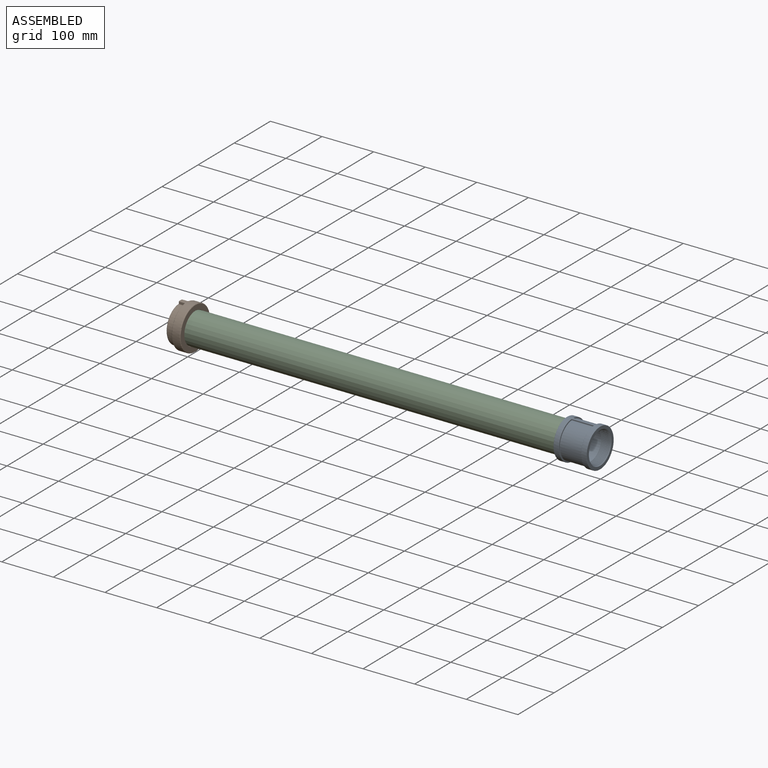
[diagram: assembled view]
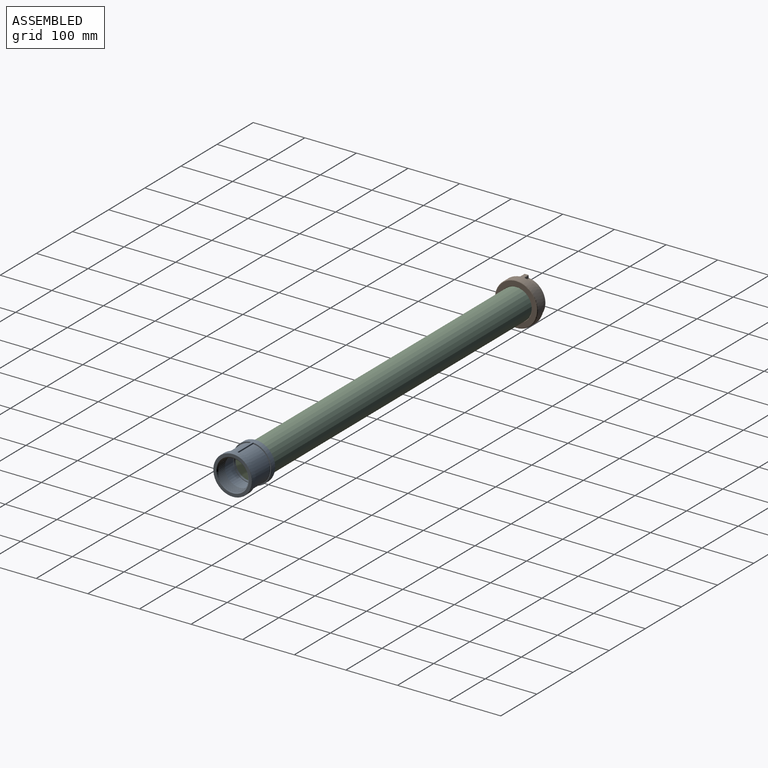
[diagram: assembled view, second angle]
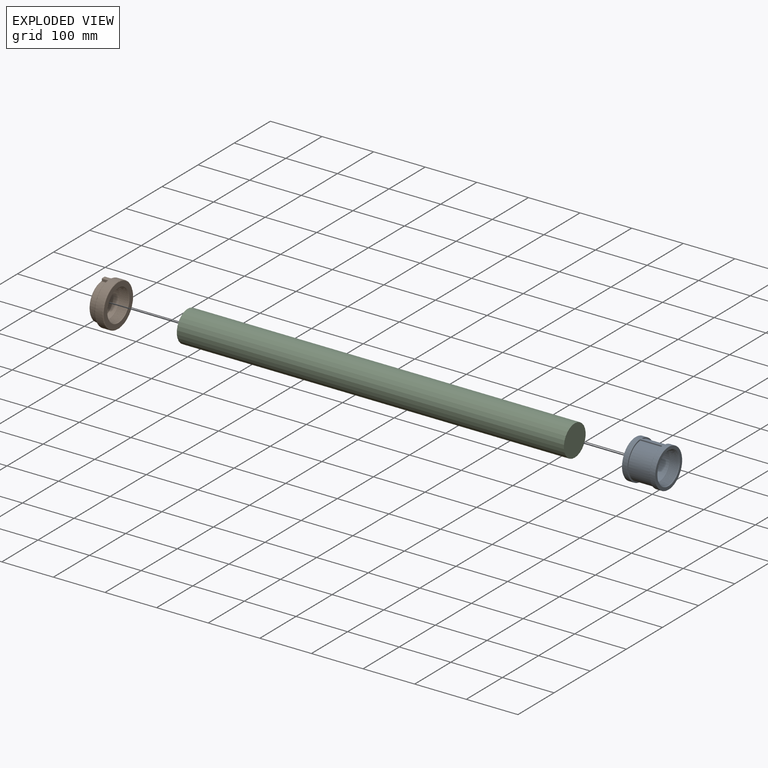
[diagram: exploded view]
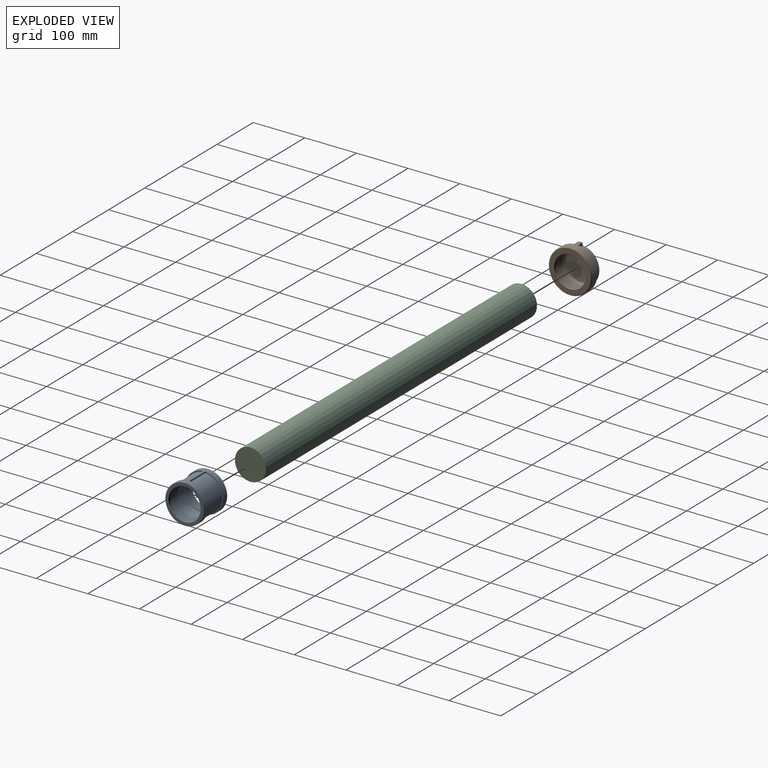
[diagram: exploded view, second angle]
ASSEMBLY  parts=3 mates=4
PART A: 106 faces, bbox 81.4x81.4x64.3 mm
  f0: cone r=0mm half-angle=1.8deg, axis (0,0,-1), area 18.4mm2, adj f1,f103,f104,f105
  f1: plane 61.11x61.11mm, normal (0,0,1), area 301.9mm2, adj f0,f2,f102,f103,f105
  f2: cylinder r=30.54mm len=61.09mm, axis (0,0,1), area 4957.4mm2, adj f1,f3
  f3: plane 61.11x61.11mm, normal (0,0,-1), area 283.1mm2, adj f2,f4,f99,f100,f101
  f4: cone r=0mm half-angle=1.8deg, axis (0,0,1), area 18.4mm2, adj f3,f5,f99,f101
  f5: cone r=0mm half-angle=1.8deg, axis (0,0,1), area 27.8mm2, adj f4,f6,f99,f101
  f6: cone r=0mm half-angle=1.8deg, axis (0,0,1), area 29.8mm2, adj f5,f7,f99,f101
  f7: cone r=0mm half-angle=1.8deg, axis (0,0,1), area 30.5mm2, adj f6,f8,f99,f101
  f8: cone r=0mm half-angle=1.8deg, axis (0,0,1), area 28.8mm2, adj f7,f9,f99,f101
  f9: cone r=0mm half-angle=1.8deg, axis (0,0,1), area 29.4mm2, adj f8,f10,f99,f101
  f10: cone r=0mm half-angle=1.8deg, axis (0,0,1), area 27.7mm2, adj f9,f11,f99,f101
  f11: cone r=0mm half-angle=1.8deg, axis (0,0,1), area 27.7mm2, adj f10,f12,f99,f101
  f12: cone r=0mm half-angle=1.8deg, axis (0,0,1), area 30mm2, adj f11,f13,f99,f101
  f13: cone r=0mm half-angle=1.8deg, axis (0,0,1), area 28.8mm2, adj f12,f14,f99,f101
  f14: cone r=0mm half-angle=1.8deg, axis (0,0,1), area 27.4mm2, adj f13,f15,f99,f101
  f15: cone r=0mm half-angle=1.8deg, axis (0,0,1), area 28.7mm2, adj f14,f16,f99,f101
  f16: cone r=0mm half-angle=1.8deg, axis (0,0,1), area 29.3mm2, adj f15,f17,f99,f101
  f17: cone r=0mm half-angle=1.8deg, axis (0,0,1), area 29.9mm2, adj f16,f18,f99,f101
  f18: cone r=0mm half-angle=1.8deg, axis (0,0,1), area 17.6mm2, adj f17,f19,f99,f101
  f19: cone r=0mm half-angle=1.8deg, axis (0,0,1), area 27.3mm2, adj f18,f20,f99,f101
  f20: cone r=0mm half-angle=1.8deg, axis (0,0,1), area 21.1mm2, adj f19,f21,f99,f101
  f21: cone r=0mm half-angle=45deg, axis (0,0,1), area 226.8mm2, adj f20,f22,f98,f99,f100,f101
  f22: plane 74.39x74.39mm, normal (0,0,1), area 1276.8mm2, adj f21,f23,f97,f98
  f23: torus R=37.2mm, axis (0,0,1), area 73.3mm2, adj f22,f24,f97
  f24: cylinder r=37.59mm len=75.18mm, axis (0,0,1), area 4978.7mm2, adj f23,f25,f43,f44,f45,f46,f47,f48
  f25: bspline ~0.8x0.79mm, area 0.5mm2, adj f24,f26,f43,f49
  f26: cylinder r=0.4mm len=1.99mm, axis (-1,0,0), area 1.2mm2, adj f25,f27,f41,f42
  f27: sphere r=0.4mm, area 0.2mm2, adj f26,f28,f40
  f28: cylinder r=0.4mm len=42.13mm, axis (0,0,-1), area 25.1mm2, adj f27,f29,f39,f42
  f29: sphere r=0.4mm, area 0.2mm2, adj f28,f30,f38
  f30: cylinder r=0.4mm len=1.99mm, axis (-1,0,0), area 1.2mm2, adj f29,f31,f42,f44
  f31: plane 74.21x34.64mm, normal (0,0,-1), area 210.6mm2, adj f30,f32,f38,f45
  f32: cylinder r=0.4mm len=1.99mm, axis (-1,0,0), area 1.2mm2, adj f31,f33,f37,f46
  f33: sphere r=0.4mm, area 0.2mm2, adj f32,f34,f38
  f34: cylinder r=0.4mm len=42.13mm, axis (0,0,-1), area 25.1mm2, adj f33,f35,f37,f39
  f35: sphere r=0.4mm, area 0.2mm2, adj f34,f36,f40
  f36: cylinder r=0.4mm len=1.99mm, axis (-1,0,0), area 1.2mm2, adj f35,f37,f41,f48
  f37: plane 42.13x1.99mm, normal (0,-1,0), area 83.7mm2, adj f32,f34,f36,f47
  f38: torus R=35.26mm, axis (0,0,1), area 65.4mm2, adj f29,f31,f33,f39
  f39: cylinder r=34.86mm len=69.54mm, axis (0,0,-1), area 4401.2mm2, adj f28,f34,f38,f40
  f40: torus R=35.26mm, axis (0,0,-1), area 65.4mm2, adj f27,f35,f39,f41
  f41: plane 74.21x34.64mm, normal (0,0,1), area 210.6mm2, adj f26,f36,f40,f49
  f42: plane 42.13x1.99mm, normal (0,-1,0), area 83.7mm2, adj f26,f28,f30,f43
  f43: cylinder r=0.4mm len=42.13mm, axis (0,0,1), area 25.5mm2, adj f24,f25,f42,f44
  f44: bspline ~0.8x0.79mm, area 0.5mm2, adj f24,f30,f43,f45
  f45: torus R=37.2mm, axis (0,0,1), area 70.1mm2, adj f24,f31,f44,f46
  f46: bspline ~0.8x0.79mm, area 0.5mm2, adj f24,f32,f45,f47
  f47: cylinder r=0.4mm len=42.13mm, axis (0,0,1), area 25.5mm2, adj f24,f37,f46,f48
  f48: bspline ~0.8x0.79mm, area 0.5mm2, adj f24,f36,f47,f49
  f49: torus R=37.2mm, axis (0,0,-1), area 70.1mm2, adj f24,f25,f41,f48
  f50: bspline ~0.8x0.79mm, area 0.5mm2, adj f24,f51,f69,f76
  f51: cylinder r=0.4mm len=1.99mm, axis (1,0,0), area 1.2mm2, adj f50,f52,f67,f68
  f52: plane 74.21x34.64mm, normal (0,0,-1), area 210.6mm2, adj f51,f53,f66,f69
  f53: cylinder r=0.4mm len=1.99mm, axis (1,0,0), area 1.2mm2, adj f52,f54,f65,f70
  f54: sphere r=0.4mm, area 0.2mm2, adj f53,f55,f66
  f55: cylinder r=0.4mm len=42.13mm, axis (0,0,-1), area 25.1mm2, adj f54,f56,f64,f65
  f56: sphere r=0.4mm, area 0.2mm2, adj f55,f57,f63
  f57: cylinder r=0.4mm len=1.99mm, axis (1,0,0), area 1.2mm2, adj f56,f58,f65,f72
  f58: plane 74.21x34.64mm, normal (0,0,1), area 210.4mm2, adj f57,f59,f62,f63,f73,f74
  f59: cylinder r=0.4mm len=1.99mm, axis (1,0,0), area 1.2mm2, adj f58,f60,f68,f75
  f60: sphere r=0.4mm, area 0.2mm2, adj f59,f61,f62
  f61: cylinder r=0.4mm len=42.13mm, axis (0,0,-1), area 25.1mm2, adj f60,f64,f67,f68
  f62: torus R=35.26mm, axis (0,0,-1), area 32.7mm2, adj f58,f60,f63,f64
  f63: torus R=35.26mm, axis (0,0,-1), area 32.7mm2, adj f56,f58,f62,f64
  f64: cylinder r=34.86mm len=69.54mm, axis (0,0,-1), area 4401.2mm2, adj f55,f61,f62,f63,f66
  f65: plane 42.13x1.99mm, normal (0,1,0), area 83.7mm2, adj f53,f55,f57,f71
  f66: torus R=35.26mm, axis (0,0,1), area 65.4mm2, adj f52,f54,f64,f67
  f67: sphere r=0.4mm, area 0.2mm2, adj f51,f61,f66
  f68: plane 42.13x1.99mm, normal (0,1,0), area 83.7mm2, adj f51,f59,f61,f76
  f69: torus R=37.2mm, axis (0,0,1), area 70.1mm2, adj f24,f50,f52,f70
  f70: bspline ~0.8x0.79mm, area 0.5mm2, adj f24,f53,f69,f71
  f71: cylinder r=0.4mm len=42.13mm, axis (0,0,1), area 25.5mm2, adj f24,f65,f70,f72
  f72: bspline ~0.8x0.79mm, area 0.5mm2, adj f24,f57,f71,f73
  f73: torus R=37.2mm, axis (0,0,-1), area 35.1mm2, adj f24,f58,f72,f74
  f74: torus R=37.2mm, axis (0,0,-1), area 35.1mm2, adj f24,f58,f73,f75
  f75: bspline ~0.8x0.79mm, area 0.5mm2, adj f24,f59,f74,f76
  f76: cylinder r=0.4mm len=42.13mm, axis (0,0,1), area 25.5mm2, adj f24,f50,f68,f75
  f77: torus R=37.2mm, axis (0,0,1), area 73.3mm2, adj f24,f78,f96
  f78: plane 74.39x74.39mm, normal (0,0,-1), area 1276.8mm2, adj f77,f79,f80,f96
  f79: cone r=0mm half-angle=45deg, axis (0,0,-1), area 258.7mm2, adj f78,f80,f103
  f80: cone r=0mm half-angle=45deg, axis (0,0,-1), area 226.8mm2, adj f78,f79,f81,f102,f103,f105
  f81: cone r=0mm half-angle=1.8deg, axis (0,0,-1), area 21.2mm2, adj f80,f82,f103,f105
  f82: cone r=0mm half-angle=1.8deg, axis (0,0,-1), area 27.3mm2, adj f81,f83,f103,f105
  f83: cone r=0mm half-angle=1.8deg, axis (0,0,-1), area 17.6mm2, adj f82,f84,f103,f105
  f84: cone r=0mm half-angle=1.8deg, axis (0,0,-1), area 29.9mm2, adj f83,f85,f103,f105
  f85: cone r=0mm half-angle=1.8deg, axis (0,0,-1), area 29.3mm2, adj f84,f86,f103,f105
  f86: cone r=0mm half-angle=1.8deg, axis (0,0,-1), area 28.7mm2, adj f85,f87,f103,f105
  f87: cone r=0mm half-angle=1.8deg, axis (0,0,-1), area 27.4mm2, adj f86,f88,f103,f105
  f88: cone r=0mm half-angle=1.8deg, axis (0,0,-1), area 28.8mm2, adj f87,f89,f103,f105
  f89: cone r=0mm half-angle=1.8deg, axis (0,0,-1), area 30mm2, adj f88,f90,f103,f105
  f90: cone r=0mm half-angle=1.8deg, axis (0,0,-1), area 27.7mm2, adj f89,f91,f103,f105
  f91: cone r=0mm half-angle=1.8deg, axis (0,0,-1), area 27.7mm2, adj f90,f92,f103,f105
  f92: cone r=0mm half-angle=1.8deg, axis (0,0,-1), area 29.4mm2, adj f91,f93,f103,f105
  f93: cone r=0mm half-angle=1.8deg, axis (0,0,-1), area 28.8mm2, adj f92,f94,f103,f105
  f94: cone r=0mm half-angle=1.8deg, axis (0,0,-1), area 30.5mm2, adj f93,f95,f103,f105
  f95: cone r=0mm half-angle=1.8deg, axis (0,0,-1), area 29.8mm2, adj f94,f103,f104,f105
  f96: torus R=37.2mm, axis (0,0,1), area 73.3mm2, adj f24,f77,f78
  f97: torus R=37.2mm, axis (0,0,1), area 73.3mm2, adj f22,f23,f24
  f98: cone r=0mm half-angle=45deg, axis (0,0,1), area 258.7mm2, adj f21,f22,f99
  f99: bspline ~59.97x59.67mm, area 1853.9mm2, adj f3,f4,f5,f6,f7,f8,f9,f10
  f100: bspline ~58.56x58.46mm, area 821.2mm2, adj f3,f21,f99,f101
  f101: bspline ~59.79x59.19mm, area 4759.8mm2, adj f3,f4,f5,f6,f7,f8,f9,f10
  f102: bspline ~58.56x58.46mm, area 821.2mm2, adj f1,f80,f103,f105
  f103: bspline ~59.97x59.67mm, area 1853.9mm2, adj f0,f1,f79,f80,f81,f82,f83,f84
  f104: cone r=0mm half-angle=1.8deg, axis (0,0,-1), area 27.1mm2, adj f0,f95,f103,f105
  f105: bspline ~59.8x59.2mm, area -803mm2, adj f0,f1,f80,f81,f82,f83,f84,f85
PART B: 89 faces, bbox 90.2x90.2x36.9 mm
  f0: revolved ~60.29x31.69mm, area 1456.2mm2, adj f1,f2
  f1: revolved ~60.33x30.16mm, area 1444.5mm2, adj f0,f2
  f2: cylinder r=30.16mm len=60.33mm, axis (0,0,1), area 1997.7mm2, adj f0,f1,f3
  f3: plane 60.33x60.33mm, normal (0,0,-1), area 195.7mm2, adj f2,f4,f5,f22,f24,f26
  f4: cone r=0mm half-angle=1.8deg, axis (0,0,1), area 0mm2, adj f3,f5,f26
  f5: cone r=0mm half-angle=1.8deg, axis (0,0,1), area 41.2mm2, adj f3,f4,f6,f24,f26
  f6: cone r=0mm half-angle=1.8deg, axis (0,0,1), area 51.8mm2, adj f5,f7,f24,f26
  f7: cone r=0mm half-angle=1.8deg, axis (0,0,1), area 54.2mm2, adj f6,f8,f24,f26
  f8: cone r=0mm half-angle=1.8deg, axis (0,0,1), area 54.2mm2, adj f7,f9,f24,f26
  f9: cone r=0mm half-angle=1.8deg, axis (0,0,1), area 54.3mm2, adj f8,f10,f24,f26
  f10: cone r=0mm half-angle=1.8deg, axis (0,0,1), area 54.2mm2, adj f9,f11,f24,f26
  f11: cone r=0mm half-angle=1.8deg, axis (0,0,1), area 54.4mm2, adj f10,f12,f24,f26
  f12: cone r=0mm half-angle=1.8deg, axis (0,0,1), area 54.5mm2, adj f11,f13,f24,f26
  f13: cone r=0mm half-angle=1.8deg, axis (0,0,1), area 54.5mm2, adj f12,f14,f24,f26
  f14: cone r=0mm half-angle=1.8deg, axis (0,0,1), area 52.3mm2, adj f13,f15,f24,f26
  f15: cone r=0mm half-angle=1.8deg, axis (0,0,1), area 54.7mm2, adj f14,f16,f24,f26
  f16: cone r=0mm half-angle=1.8deg, axis (0,0,1), area 54.7mm2, adj f15,f17,f24,f26
  f17: cone r=0mm half-angle=1.8deg, axis (0,0,1), area 54.8mm2, adj f16,f18,f24,f26
  f18: cone r=0mm half-angle=1.8deg, axis (0,0,1), area 54.7mm2, adj f17,f19,f24,f26
  f19: cone r=0mm half-angle=1.8deg, axis (0,0,1), area 54.9mm2, adj f18,f20,f24,f26
  f20: cone r=0mm half-angle=1.8deg, axis (0,0,1), area 55mm2, adj f19,f21,f24,f26
  f21: cone r=0mm half-angle=1.8deg, axis (0,0,1), area 50.6mm2, adj f20,f24,f25,f26,f27
  f22: bspline ~57.94x53.63mm, area 795.6mm2, adj f3,f23,f24,f26,f28
  f23: cone r=0mm half-angle=45deg, axis (0,0,1), area 3.4mm2, adj f22,f24,f28
  f24: bspline ~60.05x59.59mm, area 833.3mm2, adj f3,f5,f6,f7,f8,f9,f10,f11
  f25: cone r=0mm half-angle=1.8deg, axis (0,0,1), area 2.9mm2, adj f21,f24,f28
  f26: bspline ~60.45x60.33mm, area 1574.8mm2, adj f3,f4,f5,f6,f7,f8,f9,f10
  f27: cone r=0mm half-angle=45deg, axis (0,0,1), area 100.8mm2, adj f21,f26,f28,f29
  f28: cone r=0mm half-angle=45deg, axis (0,0,1), area 175.2mm2, adj f22,f23,f24,f25,f26,f27,f29
  f29: plane 80.52x80.52mm, normal (0,0,1), area 2132.9mm2, adj f27,f28,f30,f33
  f30: torus R=40.26mm, axis (0,0,1), area 283.7mm2, adj f29,f33,f41
  f31: bspline ~2.89x2.79mm, area 6.5mm2, adj f36,f39,f40,f41
  f32: bspline ~2.89x2.79mm, area 6.5mm2, adj f36,f37,f38,f41
  f33: torus R=40.26mm, axis (0,0,1), area 283.7mm2, adj f29,f30,f41
  f34: bspline ~2.89x2.79mm, area 6.5mm2, adj f41,f42,f43,f44
  f35: bspline ~2.89x2.79mm, area 6.5mm2, adj f41,f42,f45,f46
  f36: torus R=40.26mm, axis (0,0,1), area 257.9mm2, adj f31,f32,f41,f50
  f37: cylinder r=1.4mm len=9.53mm, axis (0,0,1), area 19.9mm2, adj f32,f41,f49,f53
  f38: cylinder r=1.4mm len=3.45mm, axis (1,0,0), area 7.2mm2, adj f32,f50,f52,f53
  f39: cylinder r=1.4mm len=3.45mm, axis (1,0,0), area 7.2mm2, adj f31,f50,f51,f54
  f40: cylinder r=1.4mm len=9.53mm, axis (0,0,1), area 19.9mm2, adj f31,f41,f54,f55
  f41: cylinder r=41.66mm len=83.31mm, axis (0,0,1), area 3954.7mm2, adj f30,f31,f32,f33,f34,f35,f36,f37
  f42: torus R=40.26mm, axis (0,0,1), area 257.9mm2, adj f34,f35,f41,f58
  f43: cylinder r=1.4mm len=9.53mm, axis (0,0,1), area 19.9mm2, adj f34,f41,f47,f60
  f44: cylinder r=1.4mm len=3.45mm, axis (-1,0,0), area 7.2mm2, adj f34,f58,f59,f60
  f45: cylinder r=1.4mm len=9.53mm, axis (0,0,1), area 19.9mm2, adj f35,f41,f57,f62
  f46: cylinder r=1.4mm len=3.45mm, axis (-1,0,0), area 7.2mm2, adj f35,f58,f61,f62
  f47: sphere r=1.4mm, area 1.9mm2, adj f43,f48,f63
  f48: revolved ~6.04x1.5mm, area 13.1mm2, adj f41,f47,f49,f64
  f49: sphere r=1.4mm, area 1.9mm2, adj f37,f48,f65
  f50: plane 79.7x34.54mm, normal (0,0,-1), area 342.7mm2, adj f36,f38,f39,f66
  f51: sphere r=1.4mm, area 1.8mm2, adj f39,f66,f67
  f52: sphere r=1.4mm, area 1.8mm2, adj f38,f66,f69
  f53: plane 9.53x3.45mm, normal (0,1,0), area 32.8mm2, adj f37,f38,f65,f69
  f54: plane 9.53x3.45mm, normal (0,1,0), area 32.8mm2, adj f39,f40,f67,f71
  f55: sphere r=1.4mm, area 1.9mm2, adj f40,f56,f71
  f56: revolved ~6.04x1.5mm, area 13.1mm2, adj f41,f55,f57,f72
  f57: sphere r=1.4mm, area 3mm2, adj f45,f56,f73
  f58: plane 79.7x34.54mm, normal (0,0,-1), area 342.7mm2, adj f42,f44,f46,f74
  f59: sphere r=1.4mm, area 1.8mm2, adj f44,f74,f75
  f60: plane 9.53x3.45mm, normal (0,-1,0), area 32.8mm2, adj f43,f44,f63,f75
  f61: sphere r=1.4mm, area 1.8mm2, adj f46,f74,f78
  f62: plane 9.53x3.45mm, normal (0,-1,0), area 32.8mm2, adj f45,f46,f73,f78
  f63: cylinder r=1.4mm len=3.47mm, axis (1,0,0), area 7.5mm2, adj f47,f60,f64,f76,f79
  f64: plane 5.84x3.62mm, normal (0,0,-1), area 20.2mm2, adj f48,f63,f65,f80
  f65: cylinder r=1.4mm len=3.47mm, axis (-1,0,0), area 7.5mm2, adj f49,f53,f64,f68,f81
  f66: torus R=37.15mm, axis (0,0,1), area 225.4mm2, adj f50,f51,f52,f82
  f67: cylinder r=1.4mm len=9.53mm, axis (0,0,1), area 18.8mm2, adj f51,f54,f70,f82
  f68: bspline ~1.44x1.41mm, area 2mm2, adj f65,f69,f81,f82
  f69: cylinder r=1.4mm len=9.53mm, axis (0,0,1), area 18.8mm2, adj f52,f53,f68,f82
  f70: bspline ~1.44x1.41mm, area 2mm2, adj f67,f71,f82,f83
  f71: cylinder r=1.4mm len=3.47mm, axis (-1,0,0), area 7.5mm2, adj f54,f55,f70,f72,f83
  f72: plane 5.84x3.62mm, normal (0,0,-1), area 20.2mm2, adj f56,f71,f73,f84
  f73: cylinder r=1.4mm len=3.47mm, axis (1,0,0), area 7.5mm2, adj f57,f62,f72,f77,f85
  f74: torus R=37.15mm, axis (0,0,1), area 225.4mm2, adj f58,f59,f61,f86
  f75: cylinder r=1.4mm len=9.53mm, axis (0,0,1), area 18.8mm2, adj f59,f60,f76,f86
  f76: bspline ~1.44x1.41mm, area 2mm2, adj f63,f75,f79,f86
  f77: bspline ~1.44x1.41mm, area 2mm2, adj f73,f78,f85,f86
  f78: cylinder r=1.4mm len=9.53mm, axis (0,0,1), area 18.8mm2, adj f61,f62,f77,f86
  f79: bspline ~2.32x1.45mm, area 3.1mm2, adj f63,f76,f80,f87
  f80: revolved ~5.84x1.35mm, area 8.8mm2, adj f64,f79,f81,f87
  f81: bspline ~2.32x1.45mm, area 3.1mm2, adj f65,f68,f80,f87
  f82: cylinder r=35.75mm len=70.76mm, axis (0,0,1), area 1106.6mm2, adj f66,f67,f68,f69,f70,f87,f88
  f83: bspline ~2.32x1.45mm, area 3.1mm2, adj f70,f71,f84,f88
  f84: revolved ~5.84x1.35mm, area 8.8mm2, adj f72,f83,f85,f88
  f85: bspline ~2.32x1.45mm, area 3.1mm2, adj f73,f77,f84,f88
  f86: cylinder r=35.75mm len=70.76mm, axis (0,0,1), area 1106.6mm2, adj f74,f75,f76,f77,f78,f87,f88
  f87: revolved ~71.5x35.75mm, area 2193mm2, adj f79,f80,f81,f82,f86,f88
  f88: revolved ~71.5x35.75mm, area 2193mm2, adj f82,f83,f84,f85,f86,f87
PART C: 4 faces, bbox 750x60.3x60.3 mm
  f0: cylinder r=0.05mm len=750mm, axis (-1,0,0), area 235.6mm2, adj f2,f3
  f1: cylinder r=30.15mm len=750mm, axis (-1,0,0), area 142078.5mm2, adj f2,f3
  f2: plane 60.3x60.3mm, normal (1,0,0), area 2855.8mm2, adj f0,f1
  f3: plane 60.3x60.3mm, normal (-1,0,0), area 2855.8mm2, adj f0,f1
PLACE A rot(axis=(0,1,0),90deg) t=(767.13,0,0)mm
PLACE B rot(axis=(0,1,0),90deg) t=(-21.83,0,0)mm
PLACE C at identity fixed
MATE planar C.f1 <-> B.f2  axis (-1,0,0) through (0,0,0)mm
MATE cylindrical C.f1 <-> A.f0  axis (1,0,0) through (750,0,0)mm
MATE cylindrical C.f1 <-> B.f2  axis (-1,0,0) through (0,0,0)mm
MATE planar C.f1 <-> A.f0  axis (1,0,0) through (750,0,0)mm
